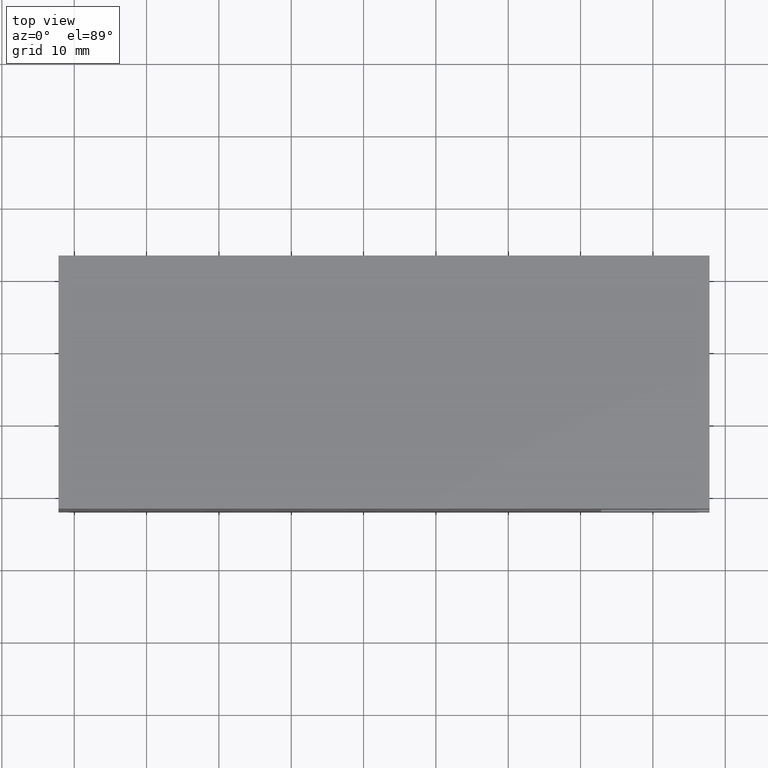
[diagram: clean part render]
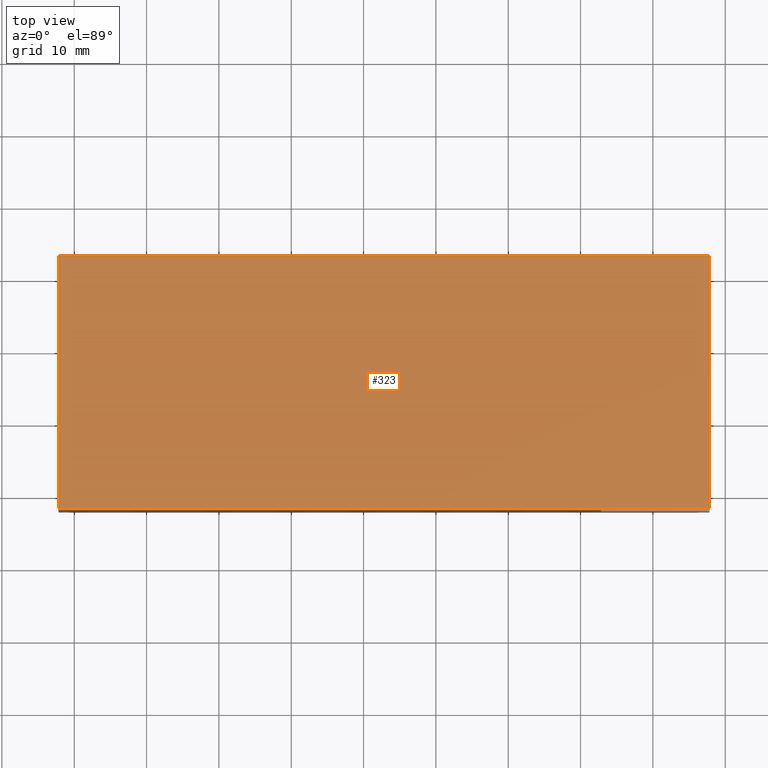
[diagram: same view with one face highlighted and labeled with its STEP entity id]
A machine part, top view. The second image highlights one B-rep face of the part: STEP entity #323.
In plain terms, the highlighted planar face has unit normal (0, 0, 1).
Its self-contained STEP definition (entity closure, byte-faithful):
#154=CARTESIAN_POINT('',(77.825283991875168,-11.961124341222451,30.0));
#155=VERTEX_POINT('',#154);
#162=CARTESIAN_POINT('',(-12.174716008124847,-11.961124341222476,30.0));
#163=VERTEX_POINT('',#162);
#164=CARTESIAN_POINT('',(77.825283991875168,-11.961124341222451,30.0));
#165=DIRECTION('',(-1.0,0.0,0.0));
#166=VECTOR('',#165,90.000000000000014);
#167=LINE('',#164,#166);
#168=EDGE_CURVE('',#155,#163,#167,.T.);
#201=CARTESIAN_POINT('',(77.825283991875153,23.038875658777531,30.0));
#202=VERTEX_POINT('',#201);
#209=CARTESIAN_POINT('',(77.825283991875153,23.038875658777531,30.0));
#210=DIRECTION('',(0.0,-1.0,0.0));
#211=VECTOR('',#210,34.999999999999986);
#212=LINE('',#209,#211);
#213=EDGE_CURVE('',#202,#155,#212,.T.);
#248=CARTESIAN_POINT('',(-12.174716008124848,23.038875658777521,30.0));
#249=VERTEX_POINT('',#248);
#250=CARTESIAN_POINT('',(-12.174716008124847,-11.961124341222476,30.0));
#251=DIRECTION('',(0.0,1.0,0.0));
#252=VECTOR('',#251,35.0);
#253=LINE('',#250,#252);
#254=EDGE_CURVE('',#163,#249,#253,.T.);
#288=CARTESIAN_POINT('',(-12.174716008124848,23.038875658777521,30.0));
#289=DIRECTION('',(1.0,0.0,0.0));
#290=VECTOR('',#289,90.0);
#291=LINE('',#288,#290);
#292=EDGE_CURVE('',#249,#202,#291,.T.);
#312=CARTESIAN_POINT('',(32.825283991875153,5.538875658777530,30.0));
#313=DIRECTION('',(0.0,0.0,1.0));
#314=DIRECTION('',(1.0,0.0,0.0));
#315=AXIS2_PLACEMENT_3D('',#312,#313,#314);
#316=PLANE('',#315);
#317=ORIENTED_EDGE('',*,*,#213,.F.);
#318=ORIENTED_EDGE('',*,*,#292,.F.);
#319=ORIENTED_EDGE('',*,*,#254,.F.);
#320=ORIENTED_EDGE('',*,*,#168,.F.);
#321=EDGE_LOOP('',(#317,#318,#319,#320));
#322=FACE_OUTER_BOUND('',#321,.T.);
#323=ADVANCED_FACE('',(#322),#316,.T.);